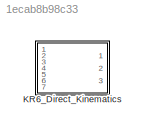
MODEL slx_1ecab8b98c33
KIND library
CONFIG AbsTol = auto
CONFIG EnableMultiTasking = off
CONFIG FixedStep = auto
CONFIG MaxStep = auto
CONFIG MinStep = auto
CONFIG RelTol = 1e-3
CONFIG SampleTimeConstraint = Unconstrained
CONFIG Solver = VariableStepAuto
CONFIG SolverName = VariableStepAuto
CONFIG StartTime = 0.0
CONFIG StopTime = 10.0
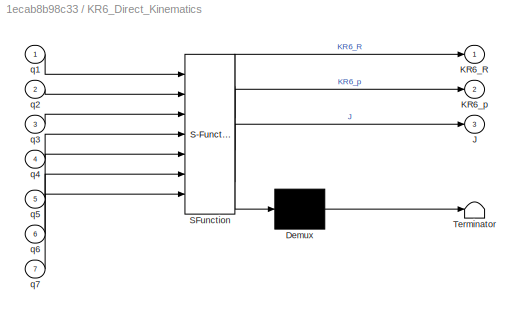
BLOCK [SubSystem] KR6_Direct_Kinematics
  ErrorFcn = Stateflow.Translate.translate
  PermitHierarchicalResolution = ExplicitOnly
  Ports = [7, 3]
  RequestExecContextInheritance = off
  SFBlockType = MATLAB Function
  TreatAsAtomicUnit = on
BLOCK [Demux] KR6_Direct_Kinematics/ Demux 
  Outputs = 1
  Ports = [1, 1]
BLOCK [S-Function] KR6_Direct_Kinematics/ SFunction 
  EnableBusSupport = off
  FunctionName = sf_sfun
  PortCounts = [7 4]
  Ports = [7, 4]
  SFcnIsStateOwnerBlock = off
  SFunctionDeploymentMode = off
  Tag = Stateflow S-Function KR6_Lib 2
BLOCK [Terminator] KR6_Direct_Kinematics/ Terminator 
BLOCK [Outport] KR6_Direct_Kinematics/J
  IconDisplay = Port number
  Port = 3
BLOCK [Outport] KR6_Direct_Kinematics/KR6_R
  IconDisplay = Port number
BLOCK [Outport] KR6_Direct_Kinematics/KR6_p
  IconDisplay = Port number
  Port = 2
BLOCK [Inport] KR6_Direct_Kinematics/q1
  IconDisplay = Port number
BLOCK [Inport] KR6_Direct_Kinematics/q2
  IconDisplay = Port number
  Port = 2
BLOCK [Inport] KR6_Direct_Kinematics/q3
  IconDisplay = Port number
  Port = 3
BLOCK [Inport] KR6_Direct_Kinematics/q4
  IconDisplay = Port number
  Port = 4
BLOCK [Inport] KR6_Direct_Kinematics/q5
  IconDisplay = Port number
  Port = 5
BLOCK [Inport] KR6_Direct_Kinematics/q6
  IconDisplay = Port number
  Port = 6
BLOCK [Inport] KR6_Direct_Kinematics/q7
  IconDisplay = Port number
  Port = 7
CHART KR6_Direct_Kinematics states=1 transitions=1
  STATE_LABEL 'eML_blk_kernel()'
  STATE_LABEL 'SCRIPT:\nfunction [KR6_R,KR6_p,J] = KR6_Direct_Kinematics(q1,q2,q3,q4,q5,q6,q7)\n%#codegen\n\n%    This function was generated by the Symbolic Math Toolbox version 8.1.\n%    09-Apr-2020 23:52:27\n\nt2 = cos(q2);\nt3 = sin(q2);\nt4 = sin(q5);\nt5 = cos(q5);\nt6 = cos(q3);\nt7 = cos(q4);\nt8 = sin(q3);\nt9 = sin(q4);\nt13 = t2.*t6.*t7;\nt14 = t2.*t8.*t9;\nt10 = t13-t14;\nt11 = cos(q7);\nt12 = t3.*t5;\nt73 = t4.*t10;\nt...<+3331ch>'
